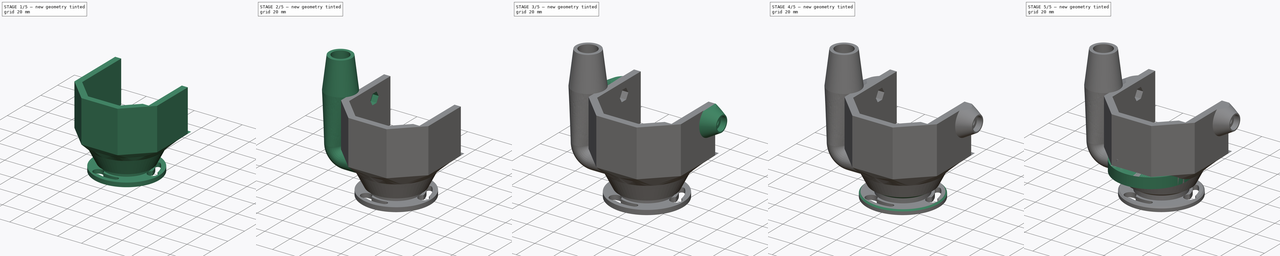
[diagram: build sequence overview — one tinted view per stage of 5, left to right]
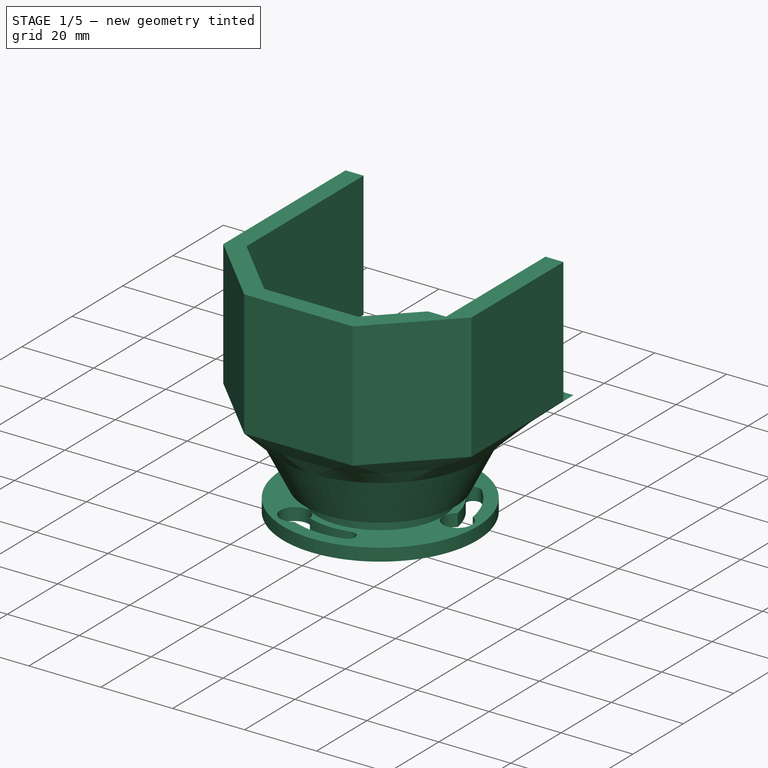
[diagram: stage 1 of 5 — iso view after this stage's code; geometry added in this stage tinted green]
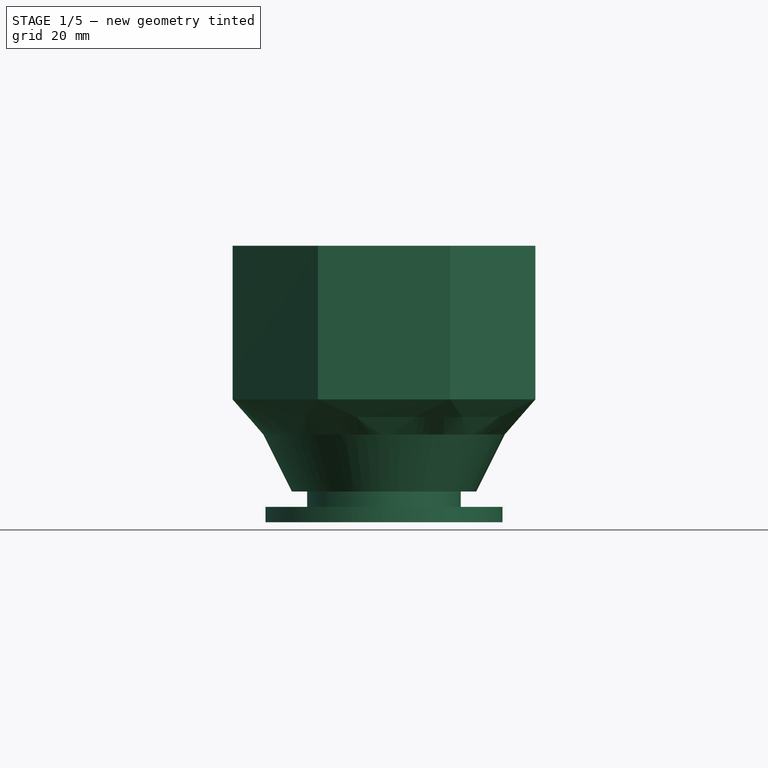
[diagram: stage 1 of 5 — front view after this stage's code; geometry added in this stage tinted green]
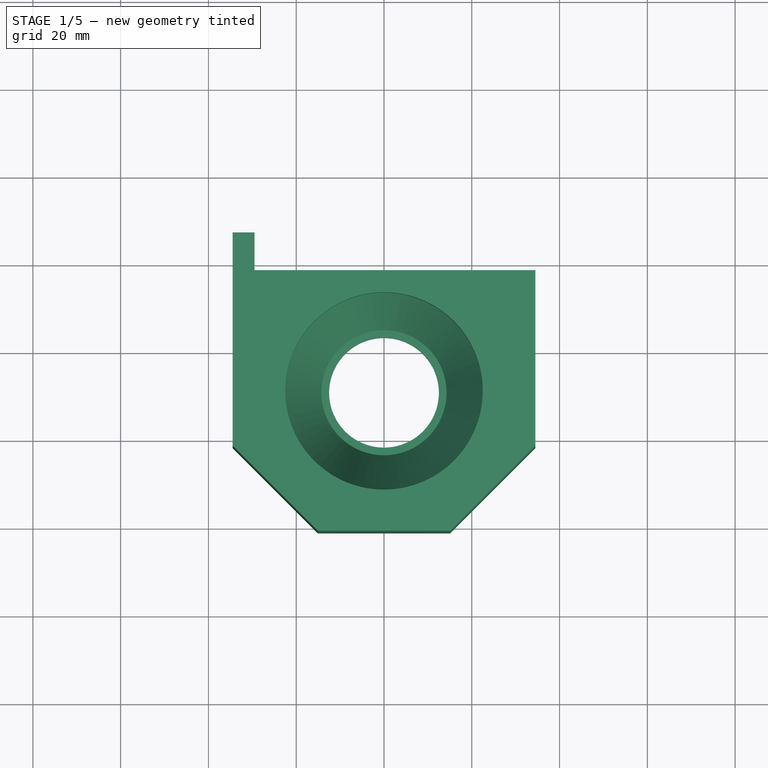
[diagram: stage 1 of 5 — top view after this stage's code; geometry added in this stage tinted green]
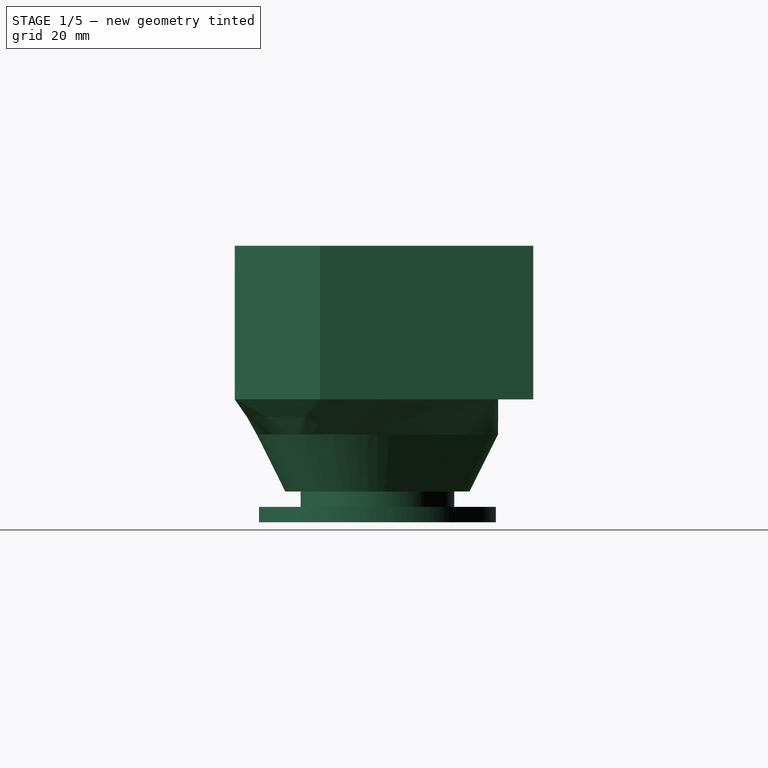
[diagram: stage 1 of 5 — right view after this stage's code; geometry added in this stage tinted green]
FCSTD DOCUMENT  (FreeCAD 1.0R39285 (Git))
Label: VacuumAdapter
License: Creative Commons Attribution-NonCommercial 4.0
LicenseURL: https://creativecommons.org/licenses/by-nc/4.0/
objects: Sketcher::SketchObject×17, PartDesign::Plane×7, PartDesign::Pad×6, PartDesign::Pocket×5, PartDesign::Chamfer×5, PartDesign::Fillet×3, PartDesign::Line×2, PartDesign::AdditiveLoft×2, PartDesign::Body×2, PartDesign::Hole×2, Spreadsheet::Sheet×1, PartDesign::Groove×1, PartDesign::AdditivePipe×1, PartDesign::Revolution×1
note: 123 computed .brp shape members not serialized (recipe doc carries the construction recipe); baked Part::Feature solids carry a one-line shape summary decoded from their .brp

FEATURE [Spreadsheet::Sheet] Spreadsheet  label="dims"
  cells = A1='assembly width; B1(assembly_width)==59 mm; C1='x-direction; E1='m5 screw len; F1(m5screw_len)==16 mm; A2='assembly width front; B2(assembly_width_front)==26 mm; C2='assumed 45°; E2='m5 nut width; F2(m5nut_width)==8.1 mm; A3='assembly height; B3(assembly_height)==35 mm; C3='z-direction, moving part; E3='m5 nut height; F3(m5nut_height)==4 mm; A4='assembly length; B4(assembly_len)==63 mm; C4='front edge to static plate bottom front edge; A5='assembly screw corner; B5(assembly_screw_corner)==5 mm; C5='screw sticking out needs to be addressed; E5='clearance from collet; F5(collet_clearance)==20 mm; A6='assembly wall thickness; B6(assembly_wall_thickness)==5 mm; C6='front plate to hole for spindle; E6='wall width; F6(wall_width)==5 mm; A7='acrylic width; B7(assembly_acrylic_width)==12 mm; A8='laser width; B8(laser_width)==33.2 mm; A9='spindle length below assembly; B9(spindle_len)==8 mm; C9='if spindle pushed down to the rim on the top and moved to Z = -1mm MPOS; E9='peg diameter small; F9(peg_s_dia)==4 mm; A10='spindle diameter; B10(spindle_dia)==42 mm; E10='peg diameter large; F10(peg_l_dia)==6 mm; A11='collet diameter; B11(collet_dia)==20 mm; E11='peg leg length; F11(peg_leg_len)==3.5 mm; A12='spindle shaft length; B12(spindle_shaft_len)==20 mm; C12='down to the point where the wrench goes to exchange tools; E12='peg top height; F12(peg_top_height)==3 mm; A14='vac hose dia outer; B14(hose_o_dia)==25 mm; A15='vac hose dia inner; B15(hose_i_dia)==hose_o_dia - 4 mm; A16='vac hose adapter length; B16(hose_adapter_len)==25 mm; A17='vac hose diff; B17(hose_diff)==3 mm
FEATURE [Sketcher::SketchObject] Sketch  label="sk_assembly_profile"
  ArcFitTolerance = 1e-06
  AttachmentSupport = -> [XY_Plane]
  FullyConstrained = true
  MakeInternals = false
  MapMode = 5
  expr: Constraints[22] = <<dims>>.assembly_width_front
  expr: Constraints[23] = <<dims>>.assembly_width
  expr: Constraints[24] = <<dims>>.wall_width
  expr: Constraints[25] = <<dims>>.assembly_len
  expr: Constraints[47] = <<dims>>.assembly_acrylic_width
  sketch-geometry (17):
    g0: LineSegment StartX=-29.5 StartY=46.5 StartZ=0 EndX=-34.5 EndY=46.5 EndZ=0
    g1: LineSegment StartX=-34.5 StartY=46.5 StartZ=0 EndX=-34.5 EndY=-2.07107 EndZ=0
    g2: LineSegment StartX=-34.5 StartY=-2.07107 StartZ=0 EndX=-15.0711 EndY=-21.5 EndZ=0
    g3: LineSegment StartX=-15.0711 StartY=-21.5 StartZ=0 EndX=15.0711 EndY=-21.5 EndZ=0
    g4: LineSegment StartX=15.0711 StartY=-21.5 StartZ=0 EndX=34.5 EndY=-2.07107 EndZ=0
    g5: LineSegment [constr] StartX=34.5 StartY=46.5 StartZ=0 EndX=29.5 EndY=46.5 EndZ=0
    g6: LineSegment StartX=29.5 StartY=0 StartZ=0 EndX=13 EndY=-16.5 EndZ=0
    g7: LineSegment StartX=13 StartY=-16.5 StartZ=0 EndX=-13 EndY=-16.5 EndZ=0
    g8: LineSegment StartX=-13 StartY=-16.5 StartZ=0 EndX=-29.5 EndY=0 EndZ=0
    g9: LineSegment StartX=-29.5 StartY=0 StartZ=0 EndX=-29.5 EndY=46.5 EndZ=0
    g10: LineSegment [constr] StartX=-13 StartY=-16.5 StartZ=0 EndX=-13 EndY=-21.5 EndZ=0
    g11: LineSegment [constr] StartX=-34.5 StartY=-2.07107 StartZ=0 EndX=-30.9645 EndY=1.46447 EndZ=0
    g12: LineSegment [constr] StartX=29.5 StartY=46.5 StartZ=0 EndX=29.5 EndY=34.5 EndZ=0
    g13: LineSegment StartX=29.5 StartY=34.5 StartZ=0 EndX=29.5 EndY=0 EndZ=0
    g14: LineSegment StartX=34.5 StartY=-2.07107 StartZ=0 EndX=34.5 EndY=34.5 EndZ=0
    g15: LineSegment [constr] StartX=34.5 StartY=34.5 StartZ=0 EndX=34.5 EndY=46.5 EndZ=0
    g16: LineSegment StartX=29.5 StartY=34.5 StartZ=0 EndX=34.5 EndY=34.5 EndZ=0
  constraints (48):
    c: Coincident(g0,g1)
    c: Vertical(g1)
    c: Coincident(g1,g2)
    c: Coincident(g2,g3)
    c: Coincident(g3,g4)
    c: Coincident(g4,g14)
    c: Coincident(g15,g5)
    c: Coincident(g5,g12)
    c: PointOnObject(g13,g-1)
    c: Coincident(g13,g6)
    c: Coincident(g6,g7)
    c: Coincident(g7,g8)
    c: PointOnObject(g8,g-1)
    c: Coincident(g8,g9)
    c: Vertical(g9)
    c: Coincident(g0,g9)
    c: Symmetric(g0,g5,g-2)
    c: Horizontal(g0)
    c: Horizontal(g5)
    c: Parallel(g6,g4)
    c: Parallel(g8,g2)
    c: Perpendicular(g8,g6)
    c: DistanceX(g7,g7) = 26
    c: DistanceX(g0,g5) = 59
    c: Distance(g0,g0) = 5
    c: DistanceY(g6,g5) = 63
    c: Symmetric(g7,g6,g-2)
    c: Symmetric(g4,g1,g-2)
    c: Horizontal(g3)
    c: Coincident(g10,g7)
    c: PointOnObject(g10,g3)
    c: Coincident(g11,g1)
    c: PointOnObject(g11,g8)
    c: Perpendicular(g8,g11)
    c: Perpendicular(g3,g10)
    c: Equal(g10,g11)
    c: Equal(g10,g0)
    c: DistanceY(g13,g12) = 46.5  'assembly_len2corner'
    c: Coincident(g12,g13)
    c: Vertical(g12)
    c: Vertical(g13)
    c: Coincident(g14,g15)
    c: Vertical(g14)
    c: Vertical(g15)
    c: Coincident(g16,g12)
    c: Coincident(g16,g14)
    c: Horizontal(g16)
    c: DistanceY(g15,g15) = 12
FEATURE [PartDesign::Pad] Pad  label="Pad_assembly_profile"
  Direction = (0,0,1)
  Length = 35
  Length2 = 10
  Profile = -> Sketch
  ReferenceAxis = -> Sketch [N_Axis]
  Suppressed = false
  Type = 0
  expr: Length = <<dims>>.assembly_height
FEATURE [Sketcher::SketchObject] Sketch001  label="sk_assembly_bottom"
  ArcFitTolerance = 1e-06
  AttachmentSupport = -> [XY_Plane]
  ExternalGeometry = -> [Sketch]
  FullyConstrained = true
  MakeInternals = false
  MapMode = 5
  expr: Constraints[1] = <<dims>>.spindle_dia + 3 mm
  expr: Constraints[22] = <<dims>>.wall_width
  expr: Constraints[8] = <<dims>>.assembly_wall_thickness
  sketch-geometry (9):
    g0: Circle CenterX=0 CenterY=11 CenterZ=0 NormalX=0 NormalY=0 NormalZ=1 AngleXU=0 Radius=22.5
    g1: LineSegment [constr] StartX=13 StartY=-16.5 StartZ=0 EndX=-13 EndY=-16.5 EndZ=0
    g2: LineSegment [constr] StartX=0 StartY=-11.5 StartZ=0 EndX=0 EndY=-16.5 EndZ=0
    g3: LineSegment StartX=34.5 StartY=38.5 StartZ=0 EndX=-34.5 EndY=38.5 EndZ=0
    g4: LineSegment StartX=-34.5 StartY=38.5 StartZ=0 EndX=-34.5 EndY=-2.07107 EndZ=0
    g5: LineSegment StartX=-34.5 StartY=-2.07107 StartZ=0 EndX=-15.0711 EndY=-21.5 EndZ=0
    g6: LineSegment StartX=-15.0711 StartY=-21.5 StartZ=0 EndX=15.0711 EndY=-21.5 EndZ=0
    g7: LineSegment StartX=15.0711 StartY=-21.5 StartZ=0 EndX=34.5 EndY=-2.07107 EndZ=0
    g8: LineSegment StartX=34.5 StartY=-2.07107 StartZ=0 EndX=34.5 EndY=38.5 EndZ=0
  constraints (23):
    c: PointOnObject(g0,g-2)
    c: Diameter(g0) = 45
    c: Coincident(g1,g-3)
    c: Coincident(g1,g-4)
    c: PointOnObject(g2,g0)
    c: PointOnObject(g2,g1)
    c: Vertical(g2)
    c: PointOnObject(g2,g-2)
    c: DistanceY(g2,g2) = 5
    c: Horizontal(g3)
    c: Coincident(g3,g4)
    c: Coincident(g4,g-5)
    c: Vertical(g4)
    c: Coincident(g4,g5)
    c: Coincident(g5,g-5)
    c: Coincident(g5,g6)
    c: Coincident(g6,g-6)
    c: Coincident(g6,g7)
    c: Coincident(g7,g-6)
    c: Coincident(g7,g8)
    c: Coincident(g8,g3)
    c: Vertical(g8)
    c: Distance(g0,g3) = 5
FEATURE [PartDesign::Plane] DatumPlane  label="dp_shaft_end"
  AttachmentOffset = pos=(0,0,-28) rot=(0,0,1;0rad)
  AttachmentSupport = -> [XY_Plane]
  Length = 60
  MapMode = 2
  Placement = pos=(0,0,-28) rot=(0,0,1;0rad)
  ResizeMode = 0
  Width = 60
  expr: .AttachmentOffset.Base.z = -<<dims>>.spindle_len - <<dims>>.spindle_shaft_len
FEATURE [Sketcher::SketchObject] Sketch002  label="sk_screw_corner"
  ArcFitTolerance = 1e-06
  AttachmentSupport = -> [XY_Plane]
  ExternalGeometry = -> [Sketch]
  FullyConstrained = true
  MakeInternals = false
  MapMode = 5
  expr: Constraints[10] = <<dims>>.assembly_screw_corner
  sketch-geometry (4):
    g0: LineSegment StartX=29.5 StartY=0 StartZ=0 EndX=24.5 EndY=0 EndZ=0
    g1: LineSegment StartX=24.5 StartY=0 StartZ=0 EndX=24.5 EndY=-5 EndZ=0
    g2: LineSegment StartX=24.5 StartY=-5 StartZ=0 EndX=29.5 EndY=-5 EndZ=0
    g3: LineSegment StartX=29.5 StartY=-5 StartZ=0 EndX=29.5 EndY=0 EndZ=0
  constraints (11):
    c: Coincident(g0,g1)
    c: Coincident(g1,g2)
    c: Coincident(g2,g3)
    c: Coincident(g3,g0)
    c: Horizontal(g0)
    c: Horizontal(g2)
    c: Vertical(g1)
    c: Vertical(g3)
    c: Coincident(g0,g-3)
    c: Equal(g2,g1)
    c: Distance(g0,g0) = 5
FEATURE [PartDesign::Pocket] Pocket  label="Pocket_screw_corner"
  BaseFeature = -> Pad
  Direction = (0,0,-1)
  Length = 23.3333
  Length2 = 5
  Profile = -> Sketch002
  ReferenceAxis = -> Sketch002 [N_Axis]
  Reversed = true
  Suppressed = false
  Type = 1
  expr: Length = <<dims>>.assembly_height * 2 / 3
FEATURE [PartDesign::Line] DatumLine  label="dl_spinde"
  AttacherType = Attacher::AttachEngineLine
  AttachmentOffset = pos=(0,-11,0) rot=(0,0,1;0rad)
  AttachmentSupport = -> [Z_Axis]
  Length = 20
  MapMode = 16
  Placement = pos=(0,11,0) rot=(0,0,1;3.14159rad)
  ResizeMode = 0
  expr: .AttachmentOffset.Base.y = -<<sk_spindle_end>>.Constraints.spindle_y_offset
FEATURE [Sketcher::SketchObject] Sketch005  label="sk_top_bayonet"
  ArcFitTolerance = 1e-06
  AttachmentSupport = -> [DatumPlane]
  ExternalGeometry = -> [DatumLine]
  FullyConstrained = true
  MakeInternals = false
  MapMode = 5
  Placement = pos=(0,0,-28) rot=(0,0,1;0rad)
  expr: .Constraints.bayonet_dia_hole = <<dims>>.collet_dia + 5 mm
  expr: Constraints[13] = <<dims>>.peg_l_dia / 2 + 1 mm
  expr: Constraints[19] = <<dims>>.peg_s_dia
  expr: Constraints[24] = 360 ° / 8
  expr: Constraints[36] = 360 ° / 3
  expr: Constraints[37] = 360 ° / 3
  expr: Constraints[4] = <<dims>>.wall_width
  expr: Constraints[63] = 360 ° / 8
  expr: Constraints[66] = 360 ° / 8
  sketch-geometry (25):
    g0: Circle CenterX=0 CenterY=11 CenterZ=0 NormalX=0 NormalY=0 NormalZ=1 AngleXU=0 Radius=12.5
    g1: Circle CenterX=0 CenterY=11 CenterZ=0 NormalX=0 NormalY=0 NormalZ=1 AngleXU=0 Radius=27
    g2: Circle [constr] CenterX=0 CenterY=11 CenterZ=0 NormalX=0 NormalY=0 NormalZ=1 AngleXU=0 Radius=17.5
    g3: Circle [constr] CenterX=0 CenterY=11 CenterZ=0 NormalX=0 NormalY=0 NormalZ=1 AngleXU=0 Radius=21.5
    g4: LineSegment [constr] StartX=17.5 StartY=11 StartZ=0 EndX=21.5 EndY=11 EndZ=0
    g5: LineSegment [constr] StartX=21.5 StartY=11 StartZ=0 EndX=27 EndY=11 EndZ=0
    g6: ArcOfCircle CenterX=21.5 CenterY=11 CenterZ=0 NormalX=0 NormalY=0 NormalZ=1 AngleXU=0 Radius=4 StartAngle=2.17702 EndAngle=7.40923
    g7: ArcOfCircle CenterX=0 CenterY=11 CenterZ=0 NormalX=0 NormalY=0 NormalZ=1 AngleXU=0 Radius=23.5 StartAngle=0.154265 EndAngle=0.785398
    g8: ArcOfCircle CenterX=15.2028 CenterY=26.2028 CenterZ=0 NormalX=0 NormalY=0 NormalZ=1 AngleXU=0 Radius=2 StartAngle=0.785398 EndAngle=3.92699
    g9: ArcOfCircle CenterX=0 CenterY=11 CenterZ=0 NormalX=0 NormalY=0 NormalZ=1 AngleXU=0 Radius=19.5 StartAngle=0.169384 EndAngle=0.785398
    g10: LineSegment [constr] StartX=16.617 StartY=27.617 StartZ=0 EndX=13.7886 EndY=24.7886 EndZ=0
    g11: ArcOfCircle CenterX=0 CenterY=11 CenterZ=0 NormalX=0 NormalY=0 NormalZ=1 AngleXU=0 Radius=23.5 StartAngle=2.24866 EndAngle=2.87979
    g12: ArcOfCircle CenterX=-20.7674 CenterY=16.5646 CenterZ=0 NormalX=0 NormalY=0 NormalZ=1 AngleXU=0 Radius=2 StartAngle=2.87979 EndAngle=6.02139
    g13: ArcOfCircle CenterX=0 CenterY=11 CenterZ=0 NormalX=0 NormalY=0 NormalZ=1 AngleXU=0 Radius=19.5 StartAngle=2.26378 EndAngle=2.87979
    g14: LineSegment [constr] StartX=-8.75 StartY=26.1554 StartZ=0 EndX=-13.5 EndY=34.3827 EndZ=0
    g15: LineSegment [constr] StartX=-8.75 StartY=-4.15544 StartZ=0 EndX=-13.5 EndY=-12.3827 EndZ=0
    g16: GeomPoint X=-10.75 Y=29.6195 Z=0
    g17: ArcOfCircle CenterX=-10.75 CenterY=29.6195 CenterZ=0 NormalX=0 NormalY=0 NormalZ=1 AngleXU=0 Radius=4 StartAngle=4.27141 EndAngle=9.50363
    g18: GeomPoint X=-10.75 Y=-7.61955 Z=0
    g19: ArcOfCircle CenterX=-10.75 CenterY=-7.61955 CenterZ=0 NormalX=0 NormalY=0 NormalZ=1 AngleXU=0 Radius=4 StartAngle=0.0826241 EndAngle=5.31484
    g20: ArcOfCircle CenterX=0 CenterY=11 CenterZ=0 NormalX=0 NormalY=0 NormalZ=1 AngleXU=0 Radius=23.5 StartAngle=4.34306 EndAngle=4.97419
    g21: ArcOfCircle CenterX=5.56461 CenterY=-9.76741 CenterZ=0 NormalX=0 NormalY=0 NormalZ=1 AngleXU=0 Radius=2 StartAngle=4.97419 EndAngle=8.11578
    g22: ArcOfCircle CenterX=0 CenterY=11 CenterZ=0 NormalX=0 NormalY=0 NormalZ=1 AngleXU=0 Radius=19.5 StartAngle=4.35817 EndAngle=4.97419
    g23: LineSegment [constr] StartX=5.04697 StartY=-7.83555 StartZ=0 EndX=6.08225 EndY=-11.6993 EndZ=0
    g24: LineSegment [constr] StartX=-22.6993 StartY=17.0822 StartZ=0 EndX=-18.8356 EndY=16.047 EndZ=0
  constraints (67):
    c: Coincident(g0,g-3)
    c: Coincident(g1,g0)
    c: Diameter(g0) = 25  'bayonet_dia_hole'
    c: Coincident(g2,g0)
    c: Distance(g2,g0) = 5
    c: Coincident(g3,g0)
    c: PointOnObject(g4,g2)
    c: PointOnObject(g4,g3)
    c: PointOnObject(g5,g1)
    c: Tangent(g4,g5) = -1.5708
    c: Perpendicular(g1,g5)
    c: Horizontal(g4,g0)
    c: Coincident(g6,g4)
    c: Radius(g6) = 4
    c: Coincident(g7,g9)
    c: Tangent(g9,g8) = 1.5708
    c: Tangent(g7,g8) = -1.5708
    c: Coincident(g7,g0)
    c: PointOnObject(g8,g3)
    c: Distance(g9,g7) = 4
    c: Coincident(g7,g6)
    c: Coincident(g9,g6)
    c: Coincident(g10,g7)
    c: Coincident(g10,g8)
    c: Angle(g-1,g10) = 0.785398
    c: Coincident(g11,g13)
    c: Tangent(g13,g12) = 1.5708
    c: Tangent(g11,g12) = -1.5708
    c: Coincident(g11,g0)
    c: PointOnObject(g12,g3)
    c: PointOnObject(g14,g2)
    c: PointOnObject(g14,g1)
    c: PointOnObject(g15,g2)
    c: PointOnObject(g15,g1)
    c: Perpendicular(g2,g15)
    c: Perpendicular(g2,g14)
    c: Angle(g-1,g14) = 2.0944
    c: Angle(g15,g-1) = 2.0944
    c: PointOnObject(g16,g14)
    c: PointOnObject(g16,g3)
    c: Coincident(g17,g16)
    c: Coincident(g13,g17)
    c: Coincident(g11,g17)
    c: Equal(g17,g6)
    c: Equal(g12,g8)
    c: PointOnObject(g18,g15)
    c: PointOnObject(g18,g3)
    c: Coincident(g19,g18)
    c: Equal(g19,g17)
    c: Coincident(g20,g22)
    c: Tangent(g22,g21) = 1.5708
    c: Tangent(g20,g21) = -1.5708
    c: Coincident(g20,g0)
    c: Coincident(g19,g22)
    c: Coincident(g19,g20)
    c: Equal(g21,g8)
    c: PointOnObject(g21,g3)
    c: Coincident(g23,g21)
    c: Coincident(g23,g20)
    c: Diameter(g1) = 54  'bayonet_dia_outside'
    c: PointOnObject(g4,g6)
    c: Distance(g6,g1) = 1.5
    c: Diameter(g3) = 43  'bayonet_dia_slots'
    c: Angle(g15,g23) = 0.785398
    c: Coincident(g24,g11)
    c: Coincident(g24,g12)
    c: Angle(g14,g24) = 0.785398
FEATURE [PartDesign::Plane] DatumPlane001  label="dp_spindle_end"
  AttachmentOffset = pos=(0,0,-8) rot=(0,0,1;0rad)
  AttachmentSupport = -> [XY_Plane]
  Length = 60
  MapMode = 5
  Placement = pos=(0,0,-8) rot=(0,0,1;0rad)
  ResizeMode = 0
  Width = 60
  expr: .AttachmentOffset.Base.z = -<<dims>>.spindle_len
FEATURE [Sketcher::SketchObject] Sketch004  label="sk_spindle_end"
  ArcFitTolerance = 1e-06
  AttachmentSupport = -> [DatumPlane001]
  ExternalGeometry = -> [Sketch001]
  FullyConstrained = true
  MakeInternals = false
  MapMode = 5
  Placement = pos=(0,0,-8) rot=(0,0,1;0rad)
  expr: Constraints[3] = <<dims>>.spindle_dia + 3 mm + <<dims>>.wall_width * 2
  sketch-geometry (2):
    g0: Circle CenterX=0 CenterY=11 CenterZ=0 NormalX=0 NormalY=0 NormalZ=1 AngleXU=0 Radius=22.5
    g1: Circle CenterX=0 CenterY=11 CenterZ=0 NormalX=0 NormalY=0 NormalZ=1 AngleXU=0 Radius=27.5
  constraints (5):
    c: Coincident(g0,g-3)
    c: Equal(g0,g-3)
    c: Coincident(g1,g0)
    c: Diameter(g1) = 55
    c: DistanceY(g-1,g0) = 11  'spindle_y_offset'
FEATURE [Sketcher::SketchObject] Sketch006  label="sk_shaft_end"
  ArcFitTolerance = 1e-06
  AttachmentSupport = -> [DatumPlane]
  ExternalGeometry = -> [DatumLine]
  FullyConstrained = true
  MakeInternals = false
  MapMode = 5
  Placement = pos=(0,0,-28) rot=(0,0,1;0rad)
  expr: Constraints[2] = <<dims>>.wall_width
  expr: Constraints[3] = <<dims>>.collet_dia + 5 mm
  sketch-geometry (2):
    g0: Circle CenterX=0 CenterY=11 CenterZ=0 NormalX=0 NormalY=0 NormalZ=1 AngleXU=0 Radius=12.5
    g1: Circle CenterX=0 CenterY=11 CenterZ=0 NormalX=0 NormalY=0 NormalZ=1 AngleXU=0 Radius=17.5
  constraints (4):
    c: Coincident(g0,g-3)
    c: Coincident(g1,g0)
    c: Distance(g0,g1) = 5
    c: Diameter(g0) = 25
FEATURE [PartDesign::AdditiveLoft] AdditiveLoft  label="aloft_shaft_cover"
  BaseFeature = -> Pocket
  Closed = false
  Profile = -> Sketch001
  Ruled = true
  Sections = -> [Sketch004,Sketch006]
  Suppressed = false
FEATURE [PartDesign::Plane] DatumPlane002  label="dp_spindle_xz"
  AttachmentSupport = -> [DatumLine]
  Length = 60
  MapMode = 3
  Placement = pos=(0,11,0) rot=(0,0.707107,0.707107;3.14159rad)
  ResizeMode = 0
  Width = 60
FEATURE [Sketcher::SketchObject] Sketch007  label="sk_bayonet_grove"
  ArcFitTolerance = 1e-06
  AttachmentSupport = -> [DatumPlane002]
  FullyConstrained = true
  MakeInternals = false
  MapMode = 5
  Placement = pos=(0,11,0) rot=(0,0.707107,0.707107;3.14159rad)
  expr: Constraints[10] = <<dims>>.collet_dia / 2 + <<dims>>.wall_width * 3 / 2
  expr: Constraints[11] = -<<dp_shaft_end>>.Placement.Base.z
  expr: Constraints[8] = <<dims>>.peg_top_height + <<dims>>.peg_leg_len + 0.5 mm
  sketch-geometry (4):
    g0: LineSegment StartX=-517.5 StartY=-28 StartZ=0 EndX=-17.5 EndY=-28 EndZ=0
    g1: LineSegment StartX=-17.5 StartY=-28 StartZ=0 EndX=-17.5 EndY=-21 EndZ=0
    g2: LineSegment StartX=-17.5 StartY=-21 StartZ=0 EndX=-517.5 EndY=-21 EndZ=0
    g3: LineSegment StartX=-517.5 StartY=-21 StartZ=0 EndX=-517.5 EndY=-28 EndZ=0
  constraints (12):
    c: Coincident(g0,g1)
    c: Coincident(g1,g2)
    c: Coincident(g2,g3)
    c: Coincident(g3,g0)
    c: Horizontal(g0)
    c: Horizontal(g2)
    c: Vertical(g1)
    c: Vertical(g3)
    c: Distance(g1,g1) = 7
    c: Distance(g2,g2) = 500
    c: Distance(g0,g-2) = 17.5
    c: Distance(g0,g-1) = 28
FEATURE [PartDesign::Groove] Groove
  Angle = 360
  Angle2 = 60
  Axis = (0,0,1)
  Base = (0,11,0)
  BaseFeature = -> AdditiveLoft
  Profile = -> Sketch007
  ReferenceAxis = -> DatumLine
  Reversed = true
  Suppressed = false
  Type = 0
FEATURE [PartDesign::Pad] Pad001  label="pad_bayonet_female"
  BaseFeature = -> Groove
  Direction = (0,0,1)
  Length = 3.5
  Length2 = 10
  Profile = -> Sketch005
  ReferenceAxis = -> Sketch005 [N_Axis]
  Suppressed = false
  Type = 0
  expr: Length = <<dims>>.peg_leg_len
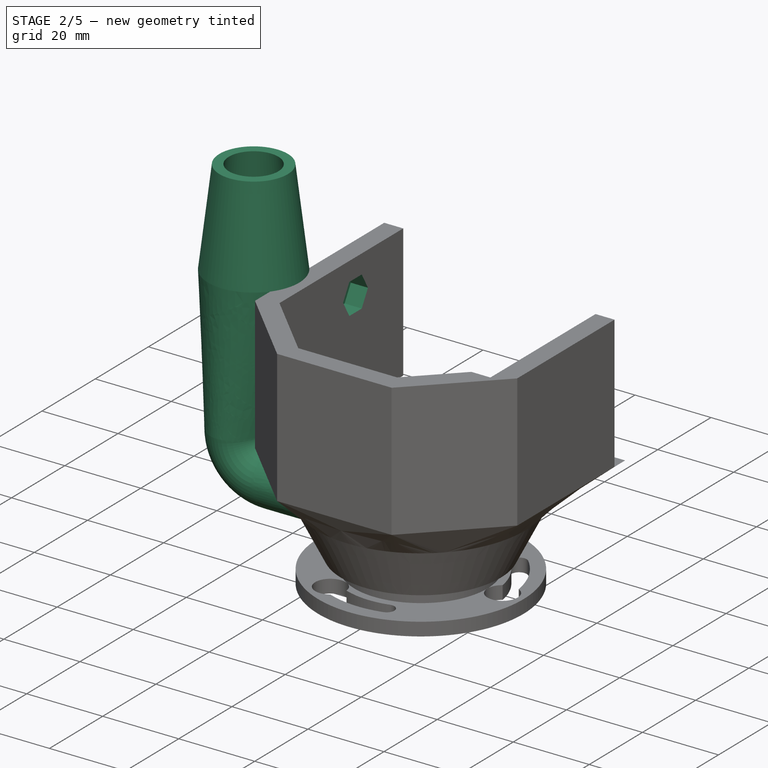
[diagram: stage 2 of 5 — iso view after this stage's code; geometry added in this stage tinted green]
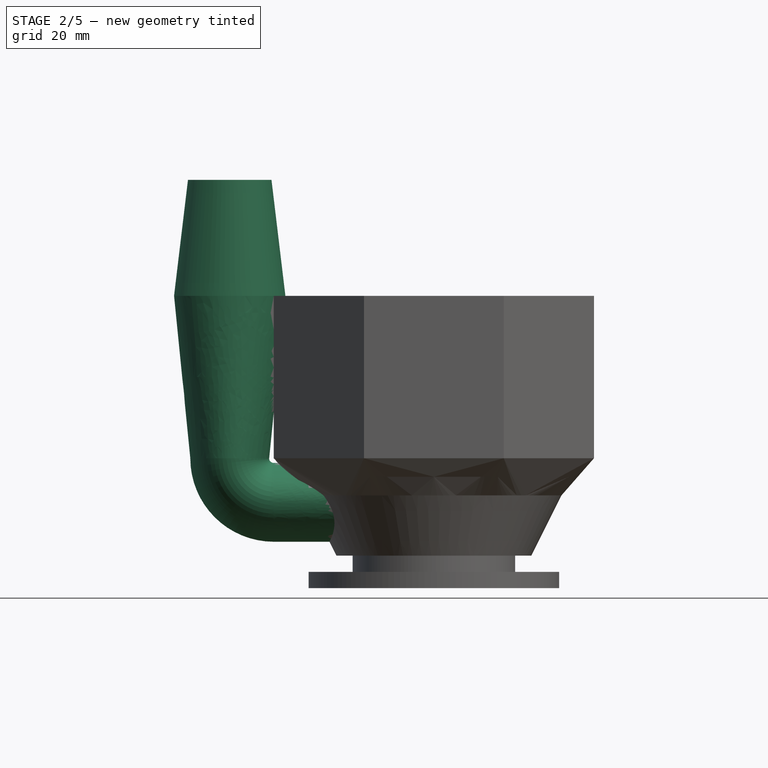
[diagram: stage 2 of 5 — front view after this stage's code; geometry added in this stage tinted green]
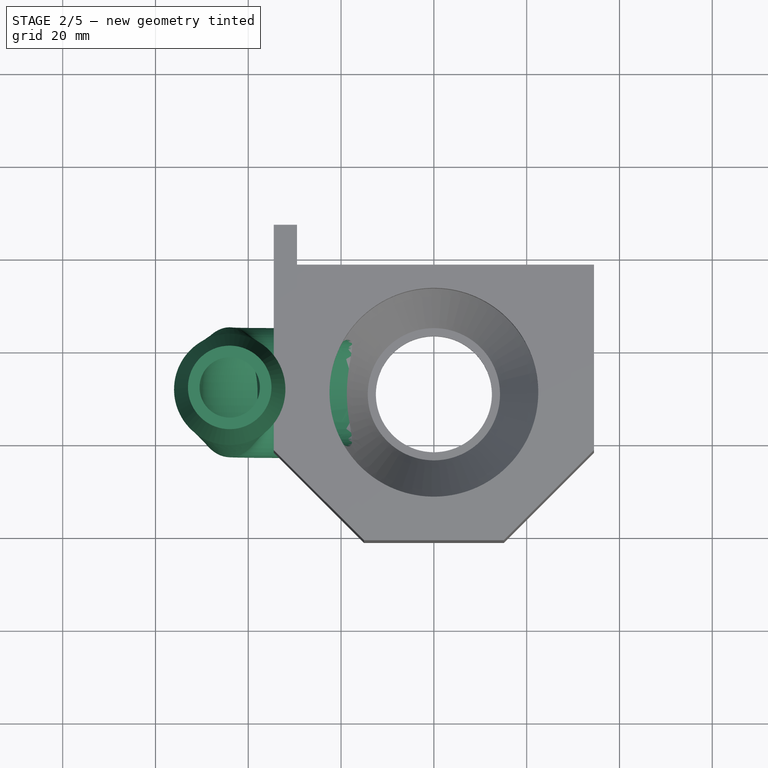
[diagram: stage 2 of 5 — top view after this stage's code; geometry added in this stage tinted green]
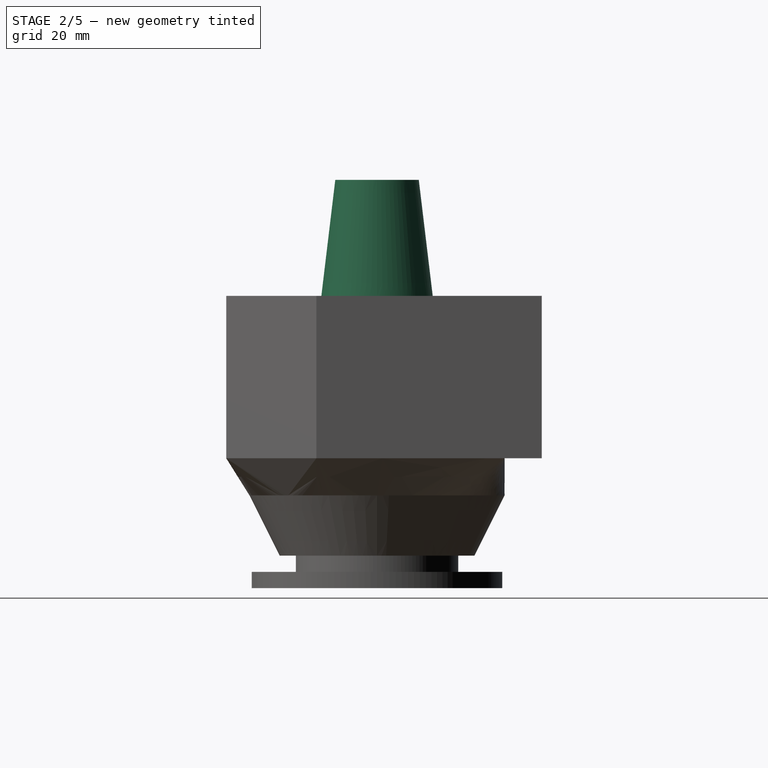
[diagram: stage 2 of 5 — right view after this stage's code; geometry added in this stage tinted green]
FEATURE [PartDesign::Plane] DatumPlane003  label="dp_spindle_yz"
  AttachmentOffset = pos=(0,0,0) rot=(0,-1,0;1.5708rad)
  AttachmentSupport = -> [DatumLine]
  Length = 60
  MapMode = 7
  Placement = pos=(0,11,0) rot=(0,1,0;1.5708rad)
  ResizeMode = 0
  Width = 60
FEATURE [Sketcher::SketchObject] Sketch008  label="sk_vacuum_adapter"
  ArcFitTolerance = 1e-06
  AttachmentOffset = pos=(0,0,-34.5) rot=(0,0,1;0rad)
  AttachmentSupport = -> [DatumPlane003]
  FullyConstrained = true
  MakeInternals = false
  MapMode = 5
  Placement = pos=(-34.5,11,-7.7e-15) rot=(0,1,0;1.5708rad)
  expr: .AttachmentOffset.Base.z = -(<<dims>>.assembly_width / 2 + <<dims>>.wall_width)
  expr: Constraints[14] = <<dims>>.wall_width / 2
  expr: Constraints[15] = <<dims>>.wall_width / 2
  expr: Constraints[7] = <<dims>>.spindle_shaft_len - 2 mm
  expr: Constraints[8] = <<dims>>.spindle_dia * 2 / 3
  sketch-geometry (10):
    g0: Ellipse CenterX=9.5 CenterY=0 CenterZ=0 NormalX=0 NormalY=0 NormalZ=1 MajorRadius=14 MinorRadius=8.5 AngleXU=1.5708
    g1: LineSegment [constr] StartX=9.5 StartY=14 StartZ=0 EndX=9.5 EndY=-14 EndZ=0
    g2: LineSegment [constr] StartX=1 StartY=0 StartZ=0 EndX=18 EndY=0 EndZ=0
    g3: GeomPoint [constr] X=9.5 Y=11.1243 Z=0
    g4: GeomPoint [constr] X=9.5 Y=-11.1243 Z=0
    g5: Ellipse CenterX=9.5 CenterY=0 CenterZ=0 NormalX=0 NormalY=0 NormalZ=1 MajorRadius=11.5 MinorRadius=6 AngleXU=1.5708
    g6: LineSegment [constr] StartX=9.5 StartY=11.5 StartZ=0 EndX=9.5 EndY=-11.5 EndZ=0
    g7: LineSegment [constr] StartX=3.5 StartY=-1e-16 StartZ=0 EndX=15.5 EndY=1e-16 EndZ=0
    g8: GeomPoint [constr] X=9.5 Y=9.81071 Z=0
    g9: GeomPoint [constr] X=9.5 Y=-9.81071 Z=0
  constraints (11):
    c: InternalAlignment(g1-g4 -> g0) x4
    c: PointOnObject(g0,g-1)
    c: Vertical(g1)
    c: Distance(g2,g-2) = 1
    c: DistanceX(g-1,g2) = 18
    c: DistanceY(g1,g1) = 28
    c: InternalAlignment(g6-g9 -> g5) x4
    c: Coincident(g5,g0)
    c: Distance(g7,g2) = 2.5
    c: Distance(g6,g1) = 2.5
    c: Vertical(g6)
FEATURE [PartDesign::Pad] Pad002  label="pad_vacuum_attachment"
  BaseFeature = -> Pad001
  Direction = (1,0,2e-16)
  Length = 0
  Length2 = 10
  Profile = -> Sketch008
  ReferenceAxis = -> Sketch008 [N_Axis]
  Suppressed = false
  Type = 2
FEATURE [PartDesign::Pocket] Pocket002  label="pocket_vacuum_adapter"
  BaseFeature = -> Pad002
  Direction = (-1,0,0)
  Length = 34.5
  Length2 = 5
  Profile = -> Pad002 [Edge95]
  Reversed = true
  Suppressed = false
  Type = 0
  UpToShape = -> [Pad002]
  expr: Length = <<dims>>.assembly_width / 2 + <<dims>>.wall_width
FEATURE [PartDesign::Plane] DatumPlane004  label="dp_assembly_top"
  AttachmentOffset = pos=(0,0,35) rot=(0,0,1;0rad)
  AttachmentSupport = -> [XY_Plane]
  Length = 60
  MapMode = 5
  Placement = pos=(0,0,35) rot=(0,0,1;0rad)
  ResizeMode = 0
  Width = 60
  expr: .AttachmentOffset.Base.z = <<dims>>.assembly_height
FEATURE [Sketcher::SketchObject] Sketch009  label="sk_vacuum_adapter_top_taper_start"
  ArcFitTolerance = 1e-06
  AttachmentSupport = -> [DatumPlane004]
  ExternalGeometry = -> [Sketch008]
  FullyConstrained = true
  MakeInternals = false
  MapMode = 5
  Placement = pos=(0,0,35) rot=(0,0,1;0rad)
  expr: Constraints[2] = <<dims>>.wall_width / 2
  expr: Constraints[5] = <<dims>>.hose_i_dia + <<dims>>.hose_diff
  sketch-geometry (3):
    g0: GeomPoint X=-34.5 Y=11 Z=0
    g1: Circle CenterX=-44 CenterY=11 CenterZ=0 NormalX=0 NormalY=0 NormalZ=1 AngleXU=0 Radius=12
    g2: Circle CenterX=-44 CenterY=11 CenterZ=0 NormalX=0 NormalY=0 NormalZ=1 AngleXU=0 Radius=9.5
  constraints (6):
    c: Symmetric(g-3,g-3,g0)
    c: Coincident(g2,g1)
    c: Distance(g2,g1) = 2.5
    c: PointOnObject(g0,g2)
    c: Horizontal(g1,g0)
    c: Diameter(g1) = 24
FEATURE [PartDesign::Plane] DatumPlane005  label="dp_hose_adapter_top"
  AttachmentOffset = pos=(0,0,25) rot=(0,0,1;0rad)
  AttachmentSupport = -> [DatumPlane004]
  Length = 60
  MapMode = 5
  Placement = pos=(0,0,60) rot=(0,0,1;0rad)
  ResizeMode = 0
  Width = 60
  expr: .AttachmentOffset.Base.z = <<dims>>.hose_adapter_len
FEATURE [Sketcher::SketchObject] Sketch010  label="sk_vacuum_adapter_top"
  ArcFitTolerance = 1e-06
  AttachmentSupport = -> [DatumPlane005]
  ExternalGeometry = -> [Sketch009]
  FullyConstrained = true
  MakeInternals = false
  MapMode = 5
  Placement = pos=(0,0,60) rot=(0,0,1;0rad)
  expr: Constraints[2] = <<dims>>.hose_i_dia - <<dims>>.hose_diff
  expr: Constraints[3] = <<dims>>.wall_width / 2
  sketch-geometry (2):
    g0: Circle CenterX=-44 CenterY=11 CenterZ=0 NormalX=0 NormalY=0 NormalZ=1 AngleXU=0 Radius=9
    g1: Circle CenterX=-44 CenterY=11 CenterZ=0 NormalX=0 NormalY=0 NormalZ=1 AngleXU=0 Radius=6.5
  constraints (4):
    c: Coincident(g0,g-3)
    c: Coincident(g1,g0)
    c: Diameter(g0) = 18
    c: Distance(g1,g0) = 2.5
FEATURE [Sketcher::SketchObject] Sketch011  label="sk_adapter_path_90_deg"
  ArcFitTolerance = 1e-06
  AttachmentSupport = -> [DatumPlane002]
  ExternalGeometry = -> [Sketch009,Sketch008]
  FullyConstrained = true
  MakeInternals = false
  MapMode = 5
  Placement = pos=(0,11,0) rot=(0,0.707107,0.707107;3.14159rad)
  sketch-geometry (3):
    g0: GeomPoint X=34.5 Y=-9.5 Z=0
    g1: GeomPoint X=44 Y=35 Z=0
    g2: ArcOfCircle CenterX=34.5 CenterY=-4.9e-15 CenterZ=0 NormalX=0 NormalY=0 NormalZ=1 AngleXU=0 Radius=9.5 StartAngle=4.71239 EndAngle=6.28319
  constraints (6):
    c: Symmetric(g-3,g-3,g1)
    c: Symmetric(g-4,g-4,g0)
    c: Coincident(g2,g0)
    c: Vertical(g1,g2)
    c: Horizontal(g2,g2)
    c: Vertical(g2,g0)
FEATURE [PartDesign::AdditivePipe] AdditivePipe  label="apipe_vacuum_adapter_90_deg"
  AuxilleryCurvelinear = true
  AuxillerySpineTangent = false
  BaseFeature = -> Pocket002
  Binormal = (0,0,0)
  Mode = 0
  Profile = -> Sketch008
  Spine = -> Sketch011 [Edge1]
  SpineTangent = false
  Suppressed = false
  Transformation = 0
  Transition = 0
FEATURE [PartDesign::Body] Body001  label="holder_top"
  AllowCompound = false
  Group = -> [Sketch012,Pad003,Sketch013,Pad004,DatumPlane006,Sketch014,Pad005,Chamfer004]
  Origin = -> Origin001
  Placement = pos=(0,11,-28) rot=(0,0,1;0rad)
  Tip = -> Chamfer004
  expr: .Placement.Base.y = <<dl_spinde>>.Placement.Base.y
  expr: .Placement.Base.z = <<dp_shaft_end>>.Placement.Base.z
FEATURE [Sketcher::SketchObject] Sketch015  label="sk_nut"
  ArcFitTolerance = 1e-06
  AttachmentSupport = -> [YZ_Plane]
  FullyConstrained = true
  MakeInternals = false
  MapMode = 5
  Placement = pos=(0,0,0) rot=(0.57735,0.57735,0.57735;2.0944rad)
  expr: Constraints[18] = <<dims>>.m5nut_width
  expr: Constraints[19] = <<sk_assembly_profile>>.Constraints.assembly_len2corner - <<dims>>.wall_width / 4 - <<dims>>.assembly_acrylic_width
  expr: Constraints[20] = <<dims>>.assembly_height - <<dims>>.wall_width
  sketch-geometry (7):
    g0: LineSegment StartX=33.25 StartY=25.95 StartZ=0 EndX=30.9117 EndY=30 EndZ=0
    g1: LineSegment StartX=30.9117 StartY=30 StartZ=0 EndX=26.2352 EndY=30 EndZ=0
    g2: LineSegment StartX=26.2352 StartY=30 StartZ=0 EndX=23.8969 EndY=25.95 EndZ=0
    g3: LineSegment StartX=23.8969 StartY=25.95 StartZ=0 EndX=26.2352 EndY=21.9 EndZ=0
    g4: LineSegment StartX=26.2352 StartY=21.9 StartZ=0 EndX=30.9117 EndY=21.9 EndZ=0
    g5: LineSegment StartX=30.9117 StartY=21.9 StartZ=0 EndX=33.25 EndY=25.95 EndZ=0
    g6: Circle [constr] CenterX=28.5735 CenterY=25.95 CenterZ=0 NormalX=0 NormalY=0 NormalZ=1 AngleXU=0 Radius=4.67654
  constraints (19):
    c: Coincident(g0,g1)
    c: Coincident(g1,g2)
    c: Coincident(g2,g3)
    c: Coincident(g3,g4)
    c: Coincident(g4,g5)
    c: Coincident(g5,g0)
    c: Equal(g0, g1-g5) x5
    c: PointOnObject(g0,g6)
    c: PointOnObject(g1,g6)
    c: PointOnObject(g2,g6)
    c: PointOnObject(g3,g6)
    c: PointOnObject(g4,g6)
    c: PointOnObject(g5,g6)
    c: Horizontal(g1)
    c: DistanceY(g3,g1) = 8.1
    c: Distance(g0,g-2) = 33.25
    c: Distance(g0,g-1) = 30
    c: Distance(g6,g-2) = 28.5735  'nuthole_y'
    c: Distance(g6,g-1) = 25.95  'nuthole_z'
FEATURE [PartDesign::AdditiveLoft] AdditiveLoft001  label="aloft_vacuum_adapter"
  BaseFeature = -> AdditivePipe
  Closed = false
  Profile = -> AdditivePipe [Face44]
  Ruled = true
  Sections = -> [Sketch009,Sketch010]
  Suppressed = false
FEATURE [PartDesign::Pocket] Pocket003  label="pocket_nut"
  BaseFeature = -> AdditiveLoft001
  Direction = (-1,0,0)
  Length = 68
  Length2 = 5
  Midplane = true
  Profile = -> Sketch015
  ReferenceAxis = -> Sketch015 [N_Axis]
  Suppressed = false
  Type = 0
  expr: Length = <<dims>>.assembly_width + 2 * <<dims>>.m5nut_height + 1 mm
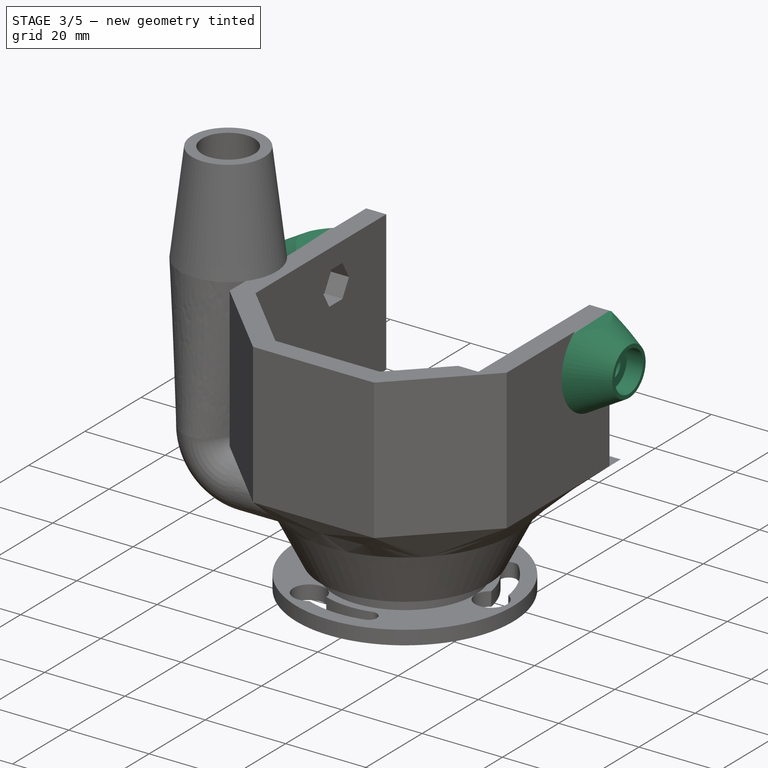
[diagram: stage 3 of 5 — iso view after this stage's code; geometry added in this stage tinted green]
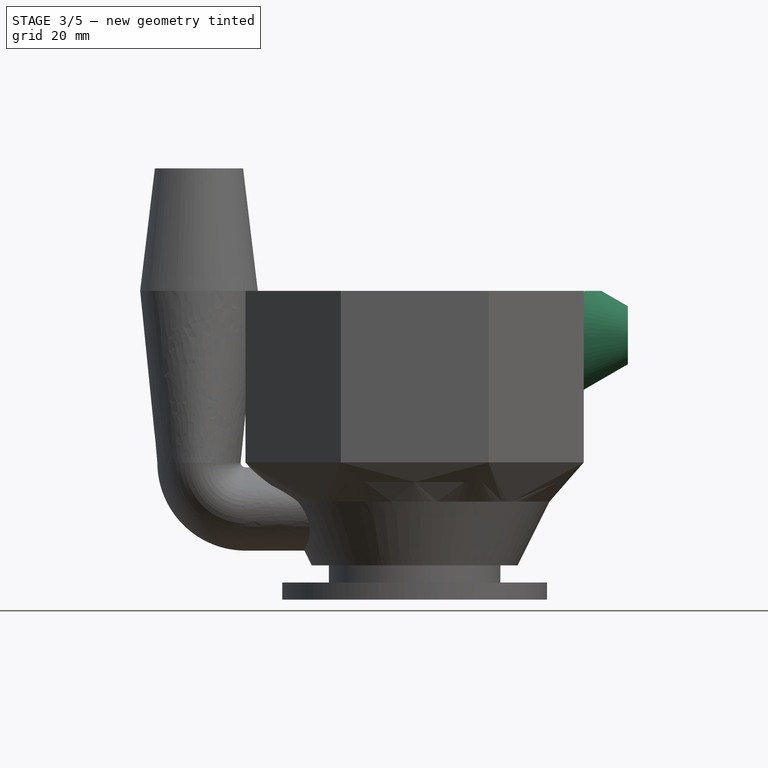
[diagram: stage 3 of 5 — front view after this stage's code; geometry added in this stage tinted green]
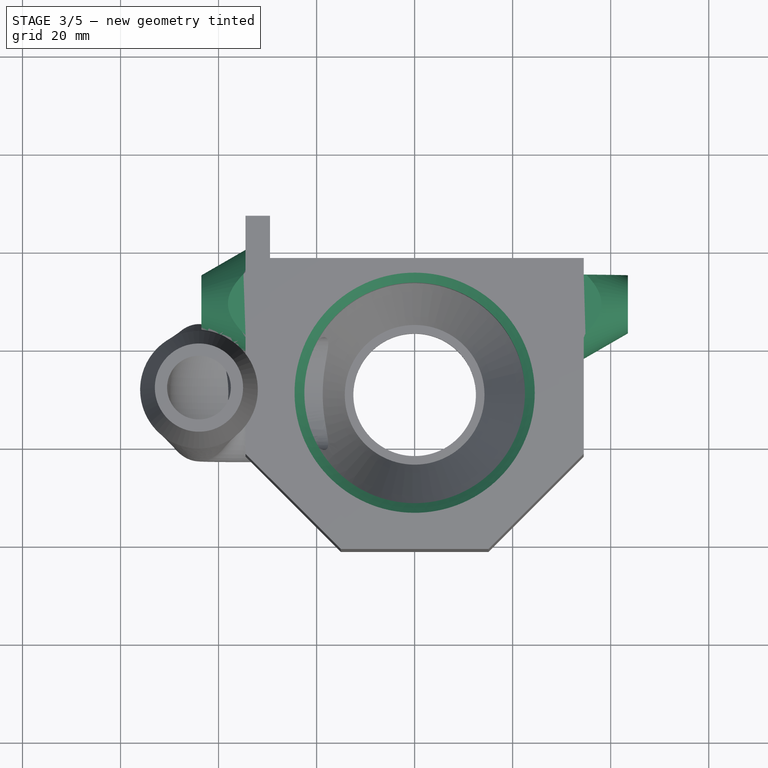
[diagram: stage 3 of 5 — top view after this stage's code; geometry added in this stage tinted green]
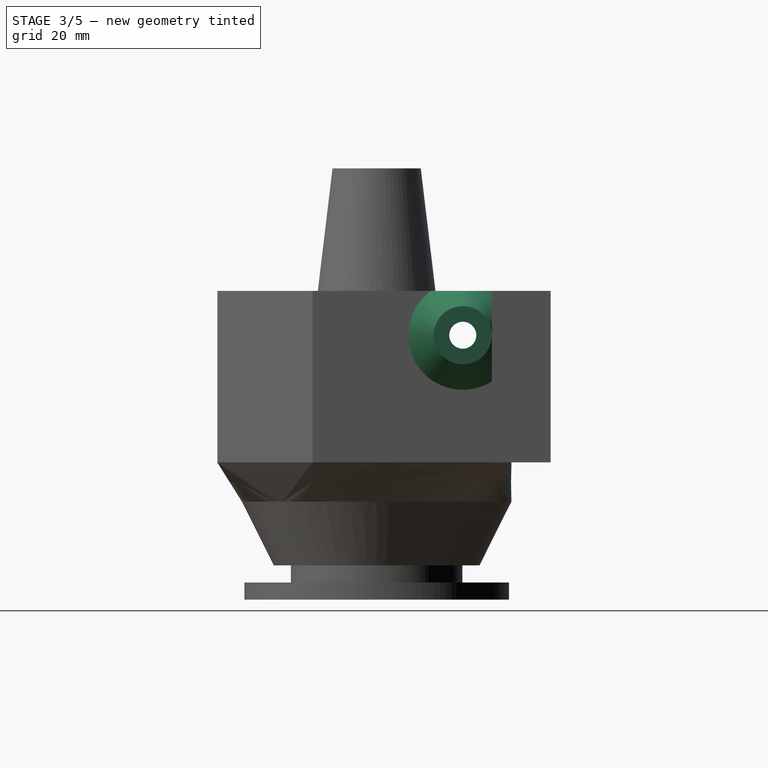
[diagram: stage 3 of 5 — right view after this stage's code; geometry added in this stage tinted green]
FEATURE [PartDesign::Line] DatumLine001  label="dl_nut"
  AttacherType = Attacher::AttachEngineLine
  AttachmentOffset = pos=(28.5735,25.95,0) rot=(0,0,1;0rad)
  AttachmentSupport = -> [X_Axis]
  Length = 20
  MapMode = 16
  Placement = pos=(0,28.5735,25.95) rot=(0.57735,0.57735,0.57735;2.0944rad)
  ResizeMode = 0
  expr: .AttachmentOffset.Base.x = <<sk_nut>>.Constraints.nuthole_y
  expr: .AttachmentOffset.Base.y = <<sk_nut>>.Constraints.nuthole_z
FEATURE [Sketcher::SketchObject] Sketch016  label="sk_screw_holders"
  ArcFitTolerance = 1e-06
  AttachmentOffset = pos=(0,0,25.95) rot=(0,0,1;0rad)
  AttachmentSupport = -> [XY_Plane]
  ExternalGeometry = -> [DatumLine001]
  FullyConstrained = true
  MakeInternals = false
  MapMode = 5
  Placement = pos=(0,0,25.95) rot=(0,0,1;0rad)
  expr: .AttachmentOffset.Base.z = <<dl_nut>>.Placement.Base.z
  expr: Constraints[7] = <<dims>>.assembly_width / 2 + <<dims>>.wall_width
  expr: Constraints[8] = <<dims>>.assembly_width / 2 + <<dims>>.m5screw_len - 2 mm
  expr: Constraints[9] = <<sk_assembly_profile>>.Constraints.assembly_len2corner - <<dims>>.assembly_acrylic_width
  sketch-geometry (8):
    g0: LineSegment StartX=34.5 StartY=28.5735 StartZ=0 EndX=34.5 EndY=39.6962 EndZ=0
    g1: LineSegment StartX=34.5 StartY=39.6962 StartZ=0 EndX=43.5 EndY=34.5 EndZ=0
    g2: LineSegment StartX=43.5 StartY=34.5 StartZ=0 EndX=43.5 EndY=28.5735 EndZ=0
    g3: LineSegment StartX=43.5 StartY=28.5735 StartZ=0 EndX=34.5 EndY=28.5735 EndZ=0
    g4: LineSegment StartX=-34.5 StartY=28.5735 StartZ=0 EndX=-43.5 EndY=28.5735 EndZ=0
    g5: LineSegment StartX=-43.5 StartY=28.5735 StartZ=0 EndX=-43.5 EndY=34.5 EndZ=0
    g6: LineSegment StartX=-43.5 StartY=34.5 StartZ=0 EndX=-34.5 EndY=39.6962 EndZ=0
    g7: LineSegment StartX=-34.5 StartY=39.6962 StartZ=0 EndX=-34.5 EndY=28.5735 EndZ=0
  constraints (20):
    c: Vertical(g0)
    c: Coincident(g0,g1)
    c: Coincident(g1,g2)
    c: Coincident(g2,g3)
    c: Coincident(g3,g0)
    c: Horizontal(g3)
    c: Vertical(g2)
    c: Distance(g0,g-2) = 34.5
    c: DistanceX(g-1,g2) = 43.5
    c: Distance(g1,g-1) = 34.5
    c: Angle(g1,g-1) = 0.523599
    c: PointOnObject(g0,g-3)
    c: Coincident(g4,g5)
    c: Coincident(g5,g6)
    c: Coincident(g6,g7)
    c: Coincident(g7,g4)
    c: Symmetric(g4,g0,g-2)
    c: Symmetric(g4,g2,g-2)
    c: Symmetric(g6,g0,g-2)
    c: Symmetric(g5,g1,g-2)
FEATURE [PartDesign::Revolution] Revolution  label="rev_nut"
  Angle = 360
  Angle2 = 60
  Axis = (1,0,0)
  Base = (0,28.5735,25.95)
  BaseFeature = -> Pocket003
  Profile = -> Sketch016
  ReferenceAxis = -> DatumLine001
  Suppressed = false
  Type = 0
FEATURE [Sketcher::SketchObject] Sketch017
  ArcFitTolerance = 1e-06
  AttachmentSupport = -> [YZ_Plane]
  FullyConstrained = true
  MakeInternals = false
  MapMode = 5
  Placement = pos=(0,0,0) rot=(0.57735,0.57735,0.57735;2.0944rad)
  expr: Constraints[13] = <<sk_assembly_profile>>.Constraints.assembly_len2corner - <<dims>>.assembly_acrylic_width
  expr: Constraints[14] = <<dims>>.assembly_height
  sketch-geometry (6):
    g0: LineSegment StartX=0 StartY=35 StartZ=0 EndX=34.5 EndY=35 EndZ=0
    g1: LineSegment StartX=34.5 StartY=35 StartZ=0 EndX=34.5 EndY=0 EndZ=0
    g2: LineSegment StartX=34.5 StartY=0 StartZ=0 EndX=84.5 EndY=0 EndZ=0
    g3: LineSegment StartX=84.5 StartY=0 StartZ=0 EndX=84.5 EndY=85 EndZ=0
    g4: LineSegment StartX=84.5 StartY=85 StartZ=0 EndX=0 EndY=85 EndZ=0
    g5: LineSegment StartX=0 StartY=85 StartZ=0 EndX=0 EndY=35 EndZ=0
  constraints (18):
    c: Horizontal(g0)
    c: Coincident(g0,g1)
    c: PointOnObject(g1,g-1)
    c: Vertical(g1)
    c: Coincident(g1,g2)
    c: PointOnObject(g2,g-1)
    c: Coincident(g2,g3)
    c: Vertical(g3)
    c: Coincident(g3,g4)
    c: Horizontal(g4)
    c: Coincident(g4,g5)
    c: Coincident(g5,g0)
    c: Vertical(g5)
    c: DistanceX(g-1,g0) = 34.5
    c: DistanceY(g-1,g0) = 35
    c: Distance(g2,g2) = 50
    c: PointOnObject(g4,g-2)
    c: Distance(g5,g5) = 50
FEATURE [PartDesign::Pocket] Pocket004
  BaseFeature = -> Revolution
  Direction = (-1,0,0)
  Length = 5
  Length2 = 5
  Profile = -> Sketch017
  ReferenceAxis = -> Sketch017 [N_Axis]
  Reversed = true
  Suppressed = false
  Type = 1
FEATURE [PartDesign::Pocket] Pocket005
  BaseFeature = -> Pocket004
  Direction = (-1,0,0)
  Length = 5
  Length2 = 5
  Profile = -> Pocket004 [Face6]
  Suppressed = false
  Type = 0
FEATURE [PartDesign::Hole] Hole
  BaseFeature = -> Pocket005
  CustomThreadClearance = 0
  Depth = 16
  DepthType = 0
  Diameter = 5.5
  DrillForDepth = false
  DrillPoint = 1
  DrillPointAngle = 118
  HoleCutCountersinkAngle = 90
  HoleCutCustomValues = false
  HoleCutDepth = 4
  HoleCutDiameter = 10
  HoleCutType = 4
  ModelThread = false
  Profile = -> Pocket005 [Edge160]
  Suppressed = false
  Tapered = false
  TaperedAngle = 90
  ThreadClass = 0
  ThreadDepth = 16
  ThreadDepthType = 0
  ThreadDirection = 0
  ThreadFit = 0
  ThreadSize = 13
  ThreadType = 1
  Threaded = false
  UseCustomThreadClearance = false
  expr: Depth = <<dims>>.m5screw_len
FEATURE [PartDesign::Hole] Hole001
  BaseFeature = -> Hole
  CustomThreadClearance = 0
  Depth = 16
  DepthType = 0
  Diameter = 5.5
  DrillForDepth = false
  DrillPoint = 1
  DrillPointAngle = 118
  HoleCutCountersinkAngle = 90
  HoleCutCustomValues = false
  HoleCutDepth = 4
  HoleCutDiameter = 10
  HoleCutType = 4
  ModelThread = false
  Profile = -> Hole [Face1]
  Suppressed = false
  Tapered = false
  TaperedAngle = 90
  ThreadClass = 0
  ThreadDepth = 16
  ThreadDepthType = 0
  ThreadDirection = 0
  ThreadFit = 0
  ThreadSize = 13
  ThreadType = 1
  Threaded = false
  UseCustomThreadClearance = false
  expr: Depth = <<dims>>.m5screw_len
FEATURE [PartDesign::Chamfer] Chamfer
  Angle = 45
  Base = -> Hole001 [Edge132]
  BaseFeature = -> Hole001
  ChamferType = 0
  FlipDirection = false
  Size = 2
  Size2 = 1
  SupportTransform = false
  Suppressed = false
  UseAllEdges = false
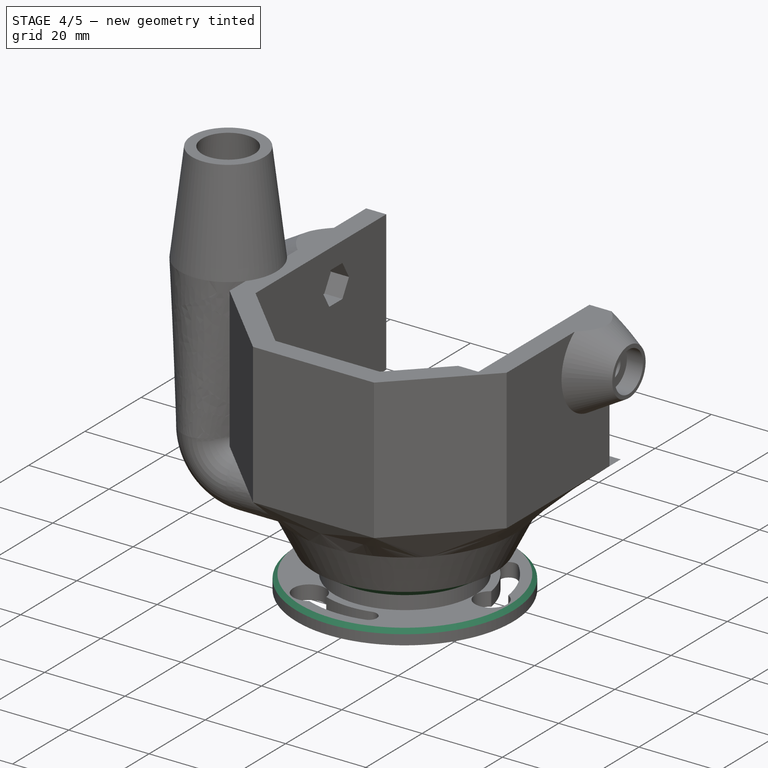
[diagram: stage 4 of 5 — iso view after this stage's code; geometry added in this stage tinted green]
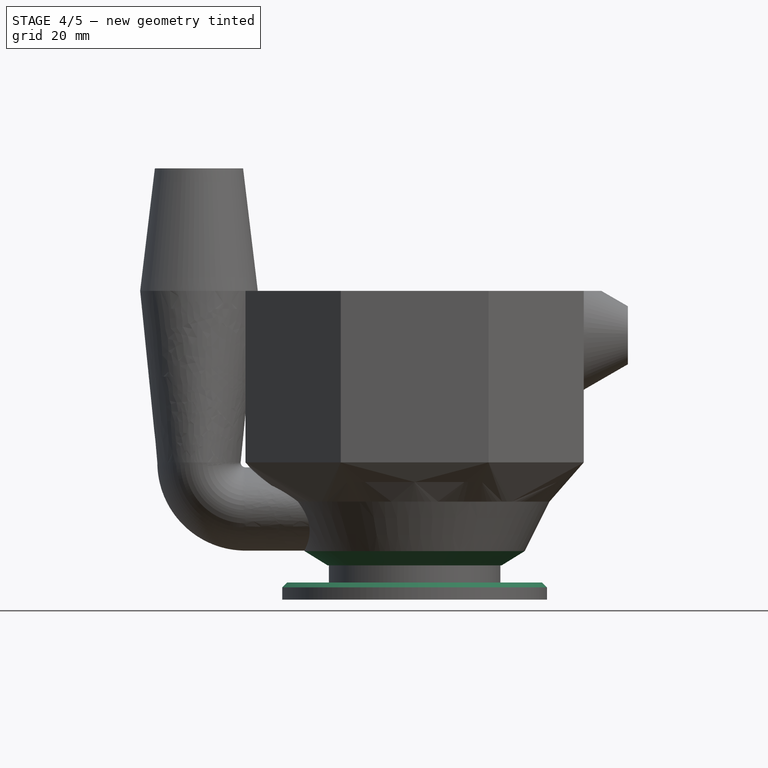
[diagram: stage 4 of 5 — front view after this stage's code; geometry added in this stage tinted green]
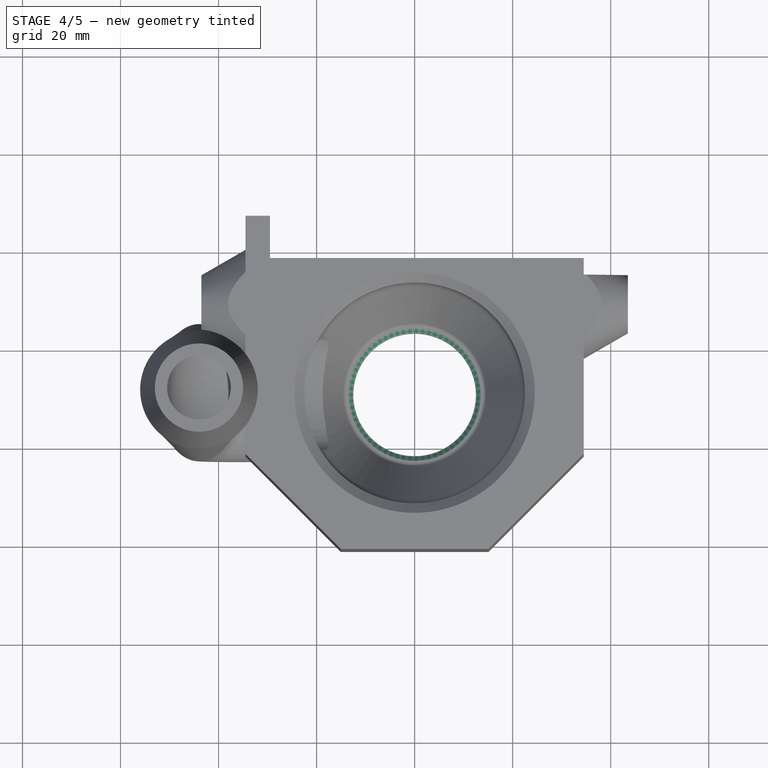
[diagram: stage 4 of 5 — top view after this stage's code; geometry added in this stage tinted green]
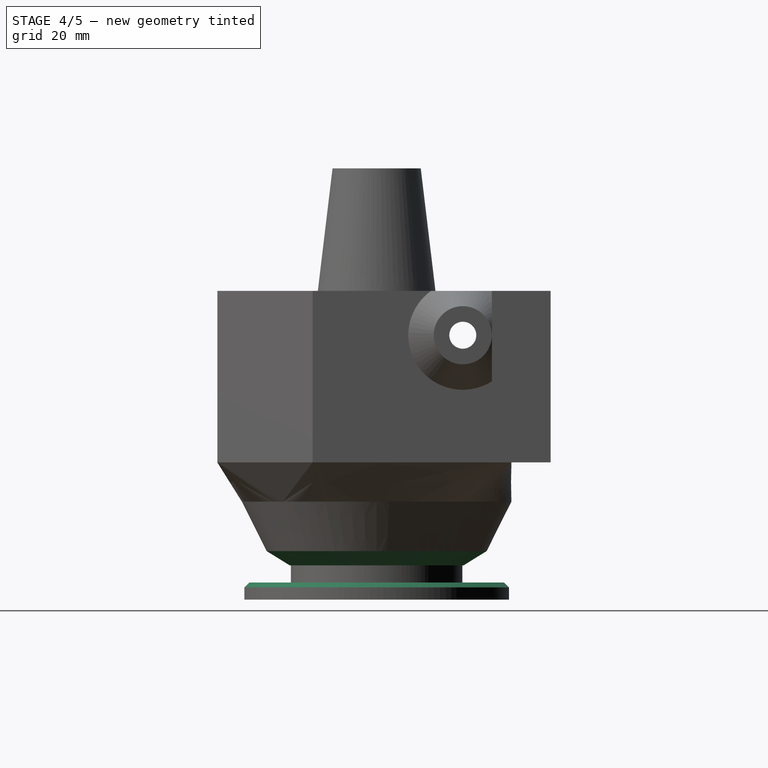
[diagram: stage 4 of 5 — right view after this stage's code; geometry added in this stage tinted green]
FEATURE [PartDesign::Chamfer] Chamfer005
  Angle = 45
  Base = -> Chamfer [Edge177]
  BaseFeature = -> Chamfer
  ChamferType = 0
  FlipDirection = false
  Size = 1
  Size2 = 1
  SupportTransform = false
  Suppressed = false
  UseAllEdges = false
FEATURE [PartDesign::Fillet] Fillet
  Base = -> Chamfer005 [Edge2]
  BaseFeature = -> Chamfer005
  Radius = 1
  SupportTransform = false
  Suppressed = false
  UseAllEdges = false
FEATURE [PartDesign::Fillet] Fillet001
  Base = -> Fillet [Edge10]
  BaseFeature = -> Fillet
  Radius = 7
  SupportTransform = false
  Suppressed = false
  UseAllEdges = false
FEATURE [PartDesign::Chamfer] Chamfer006
  Angle = 45
  Base = -> Fillet001 [Edge228]
  BaseFeature = -> Fillet001
  ChamferType = 0
  FlipDirection = false
  Size = 1
  Size2 = 1
  SupportTransform = false
  Suppressed = false
  UseAllEdges = false
FEATURE [PartDesign::Chamfer] Chamfer007
  Angle = 45
  Base = -> Chamfer006 [Edge72]
  BaseFeature = -> Chamfer006
  ChamferType = 0
  FlipDirection = false
  Size = 3.25
  Size2 = 1
  SupportTransform = false
  Suppressed = false
  UseAllEdges = false
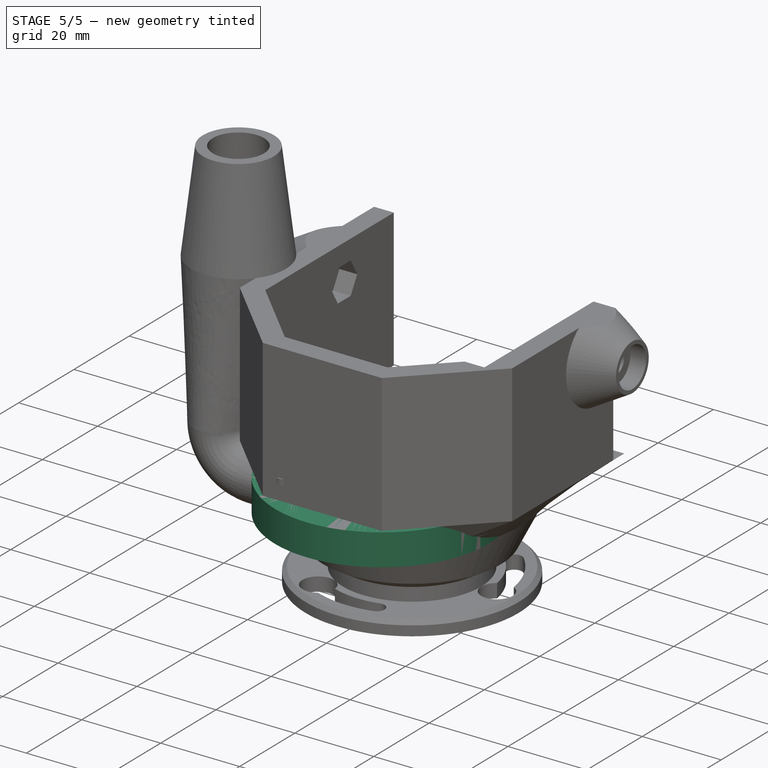
[diagram: stage 5 of 5 — iso view after this stage's code; geometry added in this stage tinted green]
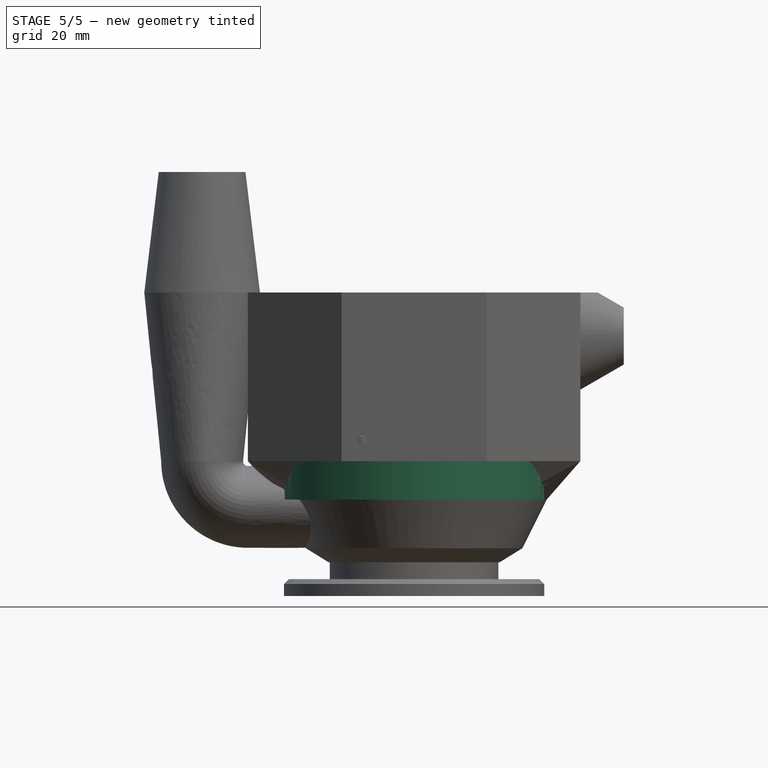
[diagram: stage 5 of 5 — front view after this stage's code; geometry added in this stage tinted green]
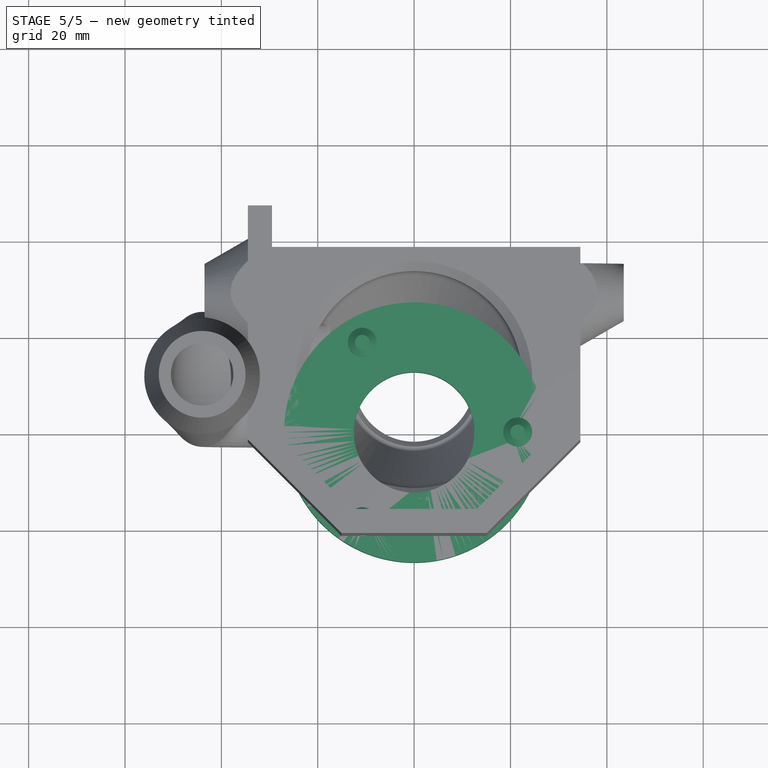
[diagram: stage 5 of 5 — top view after this stage's code; geometry added in this stage tinted green]
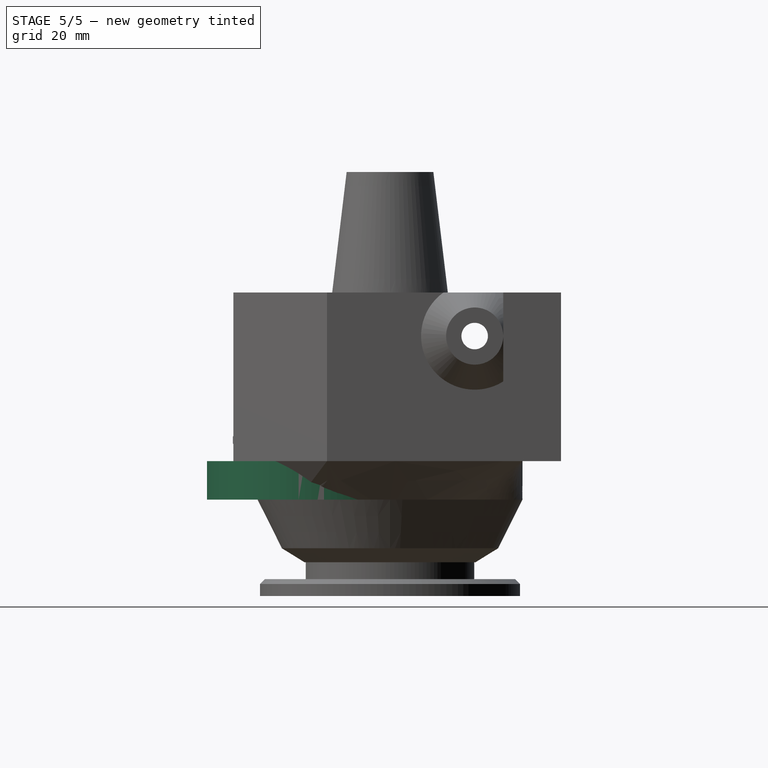
[diagram: stage 5 of 5 — right view after this stage's code; geometry added in this stage tinted green]
FEATURE [Sketcher::SketchObject] Sketch012
  ArcFitTolerance = 1e-06
  AttachmentSupport = -> [XY_Plane001]
  FullyConstrained = true
  MakeInternals = false
  MapMode = 5
  expr: Constraints[1] = <<sk_top_bayonet>>.Constraints.bayonet_dia_outside
  expr: Constraints[3] = <<sk_top_bayonet>>.Constraints.bayonet_dia_hole
  sketch-geometry (2):
    g0: Circle CenterX=0 CenterY=0 CenterZ=0 NormalX=0 NormalY=0 NormalZ=1 AngleXU=0 Radius=27
    g1: Circle CenterX=0 CenterY=0 CenterZ=0 NormalX=0 NormalY=0 NormalZ=1 AngleXU=0 Radius=12.5
  constraints (4):
    c: Coincident(g0,g-1)
    c: Diameter(g0) = 54
    c: Coincident(g1,g0)
    c: Diameter(g1) = 25
FEATURE [PartDesign::Pad] Pad003
  Direction = (0,0,1)
  Length = 8
  Length2 = 10
  Profile = -> Sketch012
  ReferenceAxis = -> Sketch012 [N_Axis]
  Reversed = true
  Suppressed = false
  Type = 0
  expr: Length = <<dims>>.m5screw_len / 2
FEATURE [Sketcher::SketchObject] Sketch013
  ArcFitTolerance = 1e-06
  AttachmentSupport = -> [XY_Plane001]
  FullyConstrained = true
  MakeInternals = false
  MapMode = 5
  expr: Constraints[12] = 360 ° / 3
  expr: Constraints[13] = 360 ° / 3
  expr: Constraints[14] = <<dims>>.peg_s_dia - 0.25 mm
  expr: Constraints[1] = <<sk_top_bayonet>>.Constraints.bayonet_dia_slots
  sketch-geometry (6):
    g0: Circle CenterX=-10.75 CenterY=18.6195 CenterZ=0 NormalX=0 NormalY=0 NormalZ=1 AngleXU=0 Radius=1.875
    g1: Circle [constr] CenterX=0 CenterY=0 CenterZ=0 NormalX=0 NormalY=0 NormalZ=1 AngleXU=0 Radius=21.5
    g2: Circle CenterX=-10.75 CenterY=-18.6195 CenterZ=0 NormalX=0 NormalY=0 NormalZ=1 AngleXU=0 Radius=1.875
    g3: Circle CenterX=21.5 CenterY=0 CenterZ=0 NormalX=0 NormalY=0 NormalZ=1 AngleXU=0 Radius=1.875
    g4: LineSegment [constr] StartX=-10.75 StartY=18.6195 StartZ=0 EndX=0 EndY=0 EndZ=0
    g5: LineSegment [constr] StartX=-10.75 StartY=-18.6195 StartZ=0 EndX=0 EndY=0 EndZ=0
  constraints (15):
    c: Coincident(g1,g-1)
    c: Diameter(g1) = 43
    c: PointOnObject(g0,g1)
    c: PointOnObject(g2,g1)
    c: PointOnObject(g3,g1)
    c: Coincident(g4,g0)
    c: Coincident(g4,g1)
    c: Coincident(g5,g2)
    c: Coincident(g5,g1)
    c: PointOnObject(g3,g-1)
    c: Equal(g3,g0)
    c: Equal(g0,g2)
    c: Angle(g5,g-1) = 2.0944
    c: Angle(g-1,g4) = 2.0944
    c: Diameter(g3) = 3.75
FEATURE [PartDesign::Pad] Pad004
  BaseFeature = -> Pad003
  Direction = (0,0,1)
  Length = 3.6
  Length2 = 10
  Profile = -> Sketch013
  ReferenceAxis = -> Sketch013 [N_Axis]
  Suppressed = false
  Type = 0
  expr: Length = <<dims>>.peg_leg_len + 0.1 mm
FEATURE [PartDesign::Plane] DatumPlane006  label="dp_top_of_peg_legs"
  AttachmentOffset = pos=(0,0,3.6) rot=(0,0,1;0rad)
  AttachmentSupport = -> [XY_Plane001]
  Length = 60
  MapMode = 5
  Placement = pos=(0,0,3.6) rot=(0,0,1;0rad)
  ResizeMode = 0
  Width = 60
  expr: .AttachmentOffset.Base.z = <<Pad004>>.Length
FEATURE [Sketcher::SketchObject] Sketch014
  ArcFitTolerance = 1e-06
  AttachmentSupport = -> [DatumPlane006]
  ExternalGeometry = -> [Sketch013]
  FullyConstrained = true
  MakeInternals = false
  MapMode = 5
  Placement = pos=(0,0,3.6) rot=(0,0,1;0rad)
  expr: Constraints[5] = <<dims>>.peg_l_dia
  sketch-geometry (3):
    g0: Circle CenterX=-10.75 CenterY=18.6195 CenterZ=0 NormalX=0 NormalY=0 NormalZ=1 AngleXU=0 Radius=3
    g1: Circle CenterX=21.5 CenterY=0 CenterZ=0 NormalX=0 NormalY=0 NormalZ=1 AngleXU=0 Radius=3
    g2: Circle CenterX=-10.75 CenterY=-18.6195 CenterZ=0 NormalX=0 NormalY=0 NormalZ=1 AngleXU=0 Radius=3
  constraints (6):
    c: Coincident(g0,g-3)
    c: Coincident(g1,g-4)
    c: Coincident(g2,g-5)
    c: Equal(g0,g1)
    c: Equal(g1,g2)
    c: Diameter(g1) = 6
FEATURE [PartDesign::Pad] Pad005
  BaseFeature = -> Pad004
  Direction = (0,0,1)
  Length = 3
  Length2 = 10
  Profile = -> Sketch014
  ReferenceAxis = -> Sketch014 [N_Axis]
  Suppressed = false
  Type = 0
  expr: Length = <<dims>>.peg_top_height
FEATURE [PartDesign::Chamfer] Chamfer004
  Angle = 45
  Base = -> Pad005 [Edge24,Edge22,Edge20]
  BaseFeature = -> Pad005
  ChamferType = 0
  FlipDirection = false
  Size = 1.5
  Size2 = 1
  SupportTransform = false
  Suppressed = false
  UseAllEdges = false
  expr: Size = <<dims>>.peg_top_height / 2
FEATURE [PartDesign::Fillet] Fillet002
  Base = -> Chamfer007 [Edge272]
  BaseFeature = -> Chamfer007
  Radius = 1
  Refine = true
  SupportTransform = false
  Suppressed = false
  UseAllEdges = false
FEATURE [PartDesign::Body] Body  label="assembly_clamp"
  AllowCompound = false
  Group = -> [Sketch,Pad,Sketch001,DatumPlane,Sketch002,Pocket,Sketch004,AdditiveLoft,Sketch005,DatumLine,DatumPlane001,Sketch006,Sketch007,Groove,Pad001,DatumPlane002,DatumPlane003,Sketch008,Pad002,Pocket002,DatumPlane004,Sketch009,DatumPlane005,Sketch010,Sketch011,AdditivePipe,Sketch015,AdditiveLoft001,Pocket003,DatumLine001,Sketch016,Revolution,Sketch017,Pocket004,Pocket005,Hole,Hole001,Chamfer,Chamfer005,+5 more]
  Origin = -> Origin
  Tip = -> Fillet002
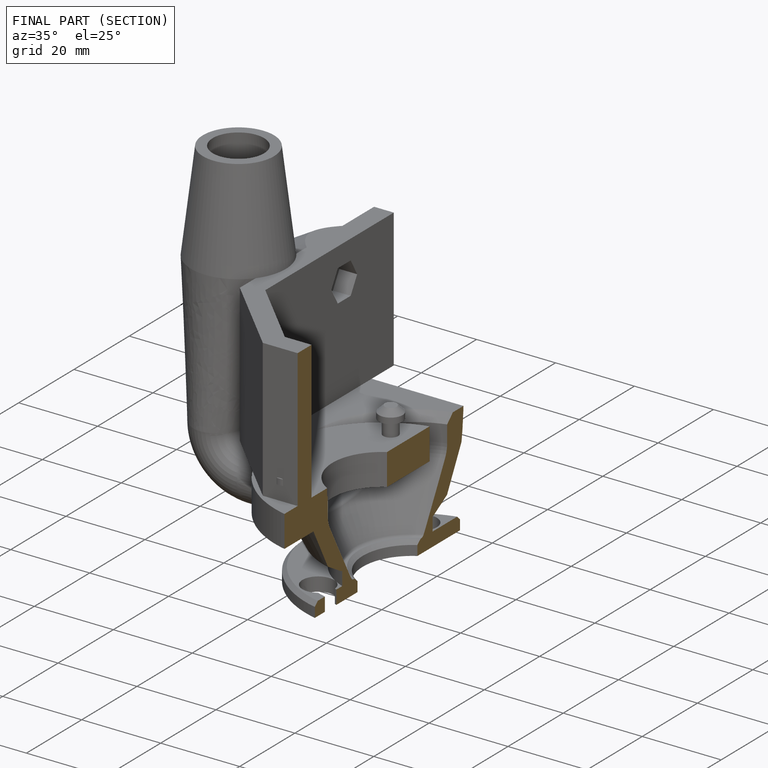
[diagram: finished part — half-section view (interior)]
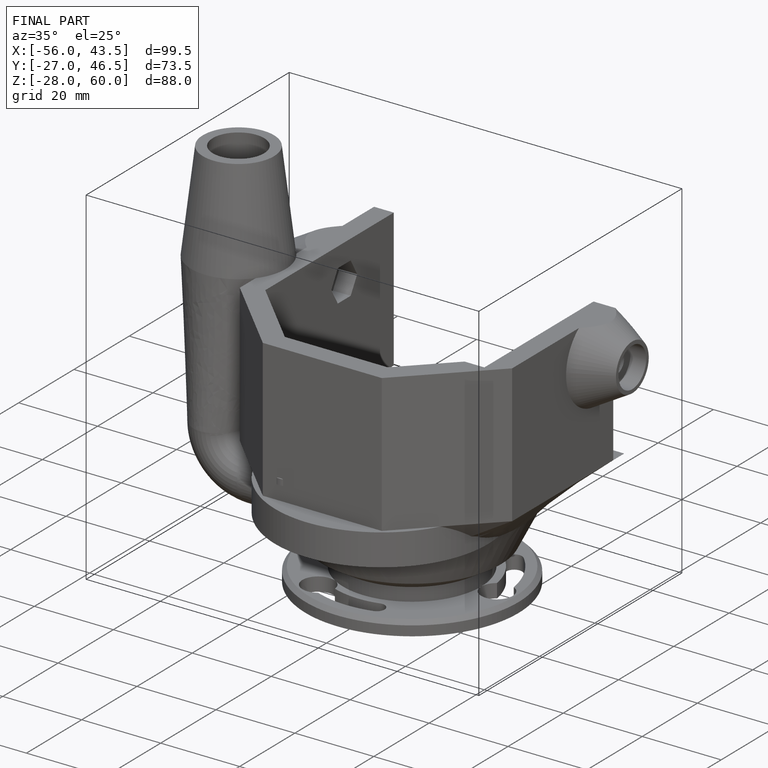
[diagram: finished part — iso view with bounding-box wireframe]
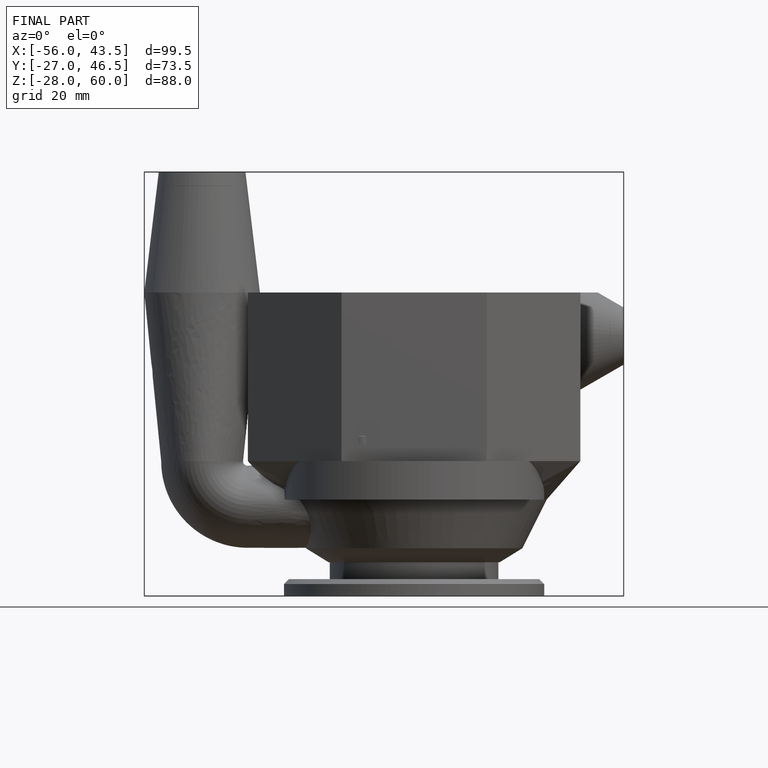
[diagram: finished part — front view with bounding-box wireframe]
